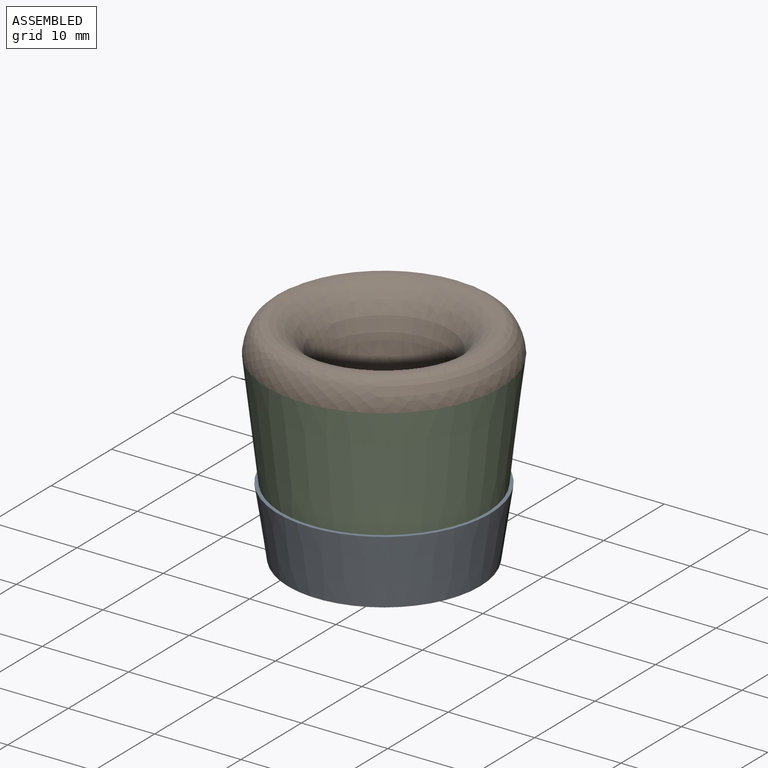
[diagram: assembled view]
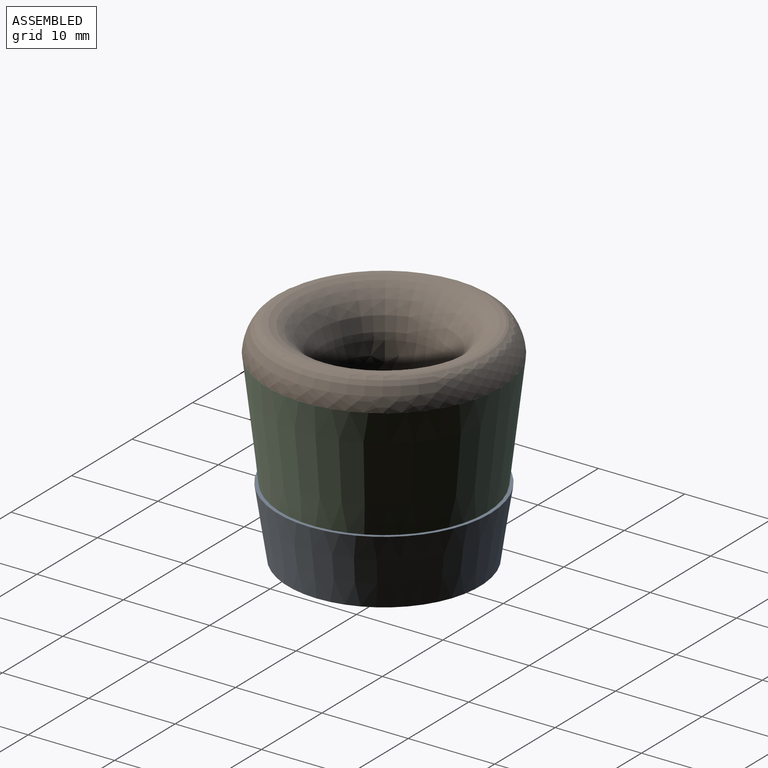
[diagram: assembled view, second angle]
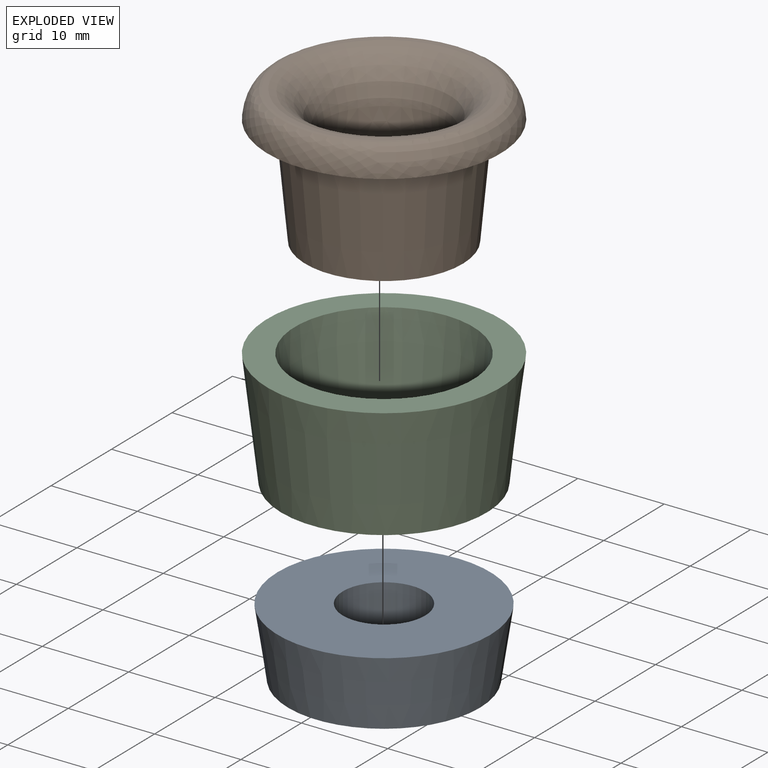
[diagram: exploded view]
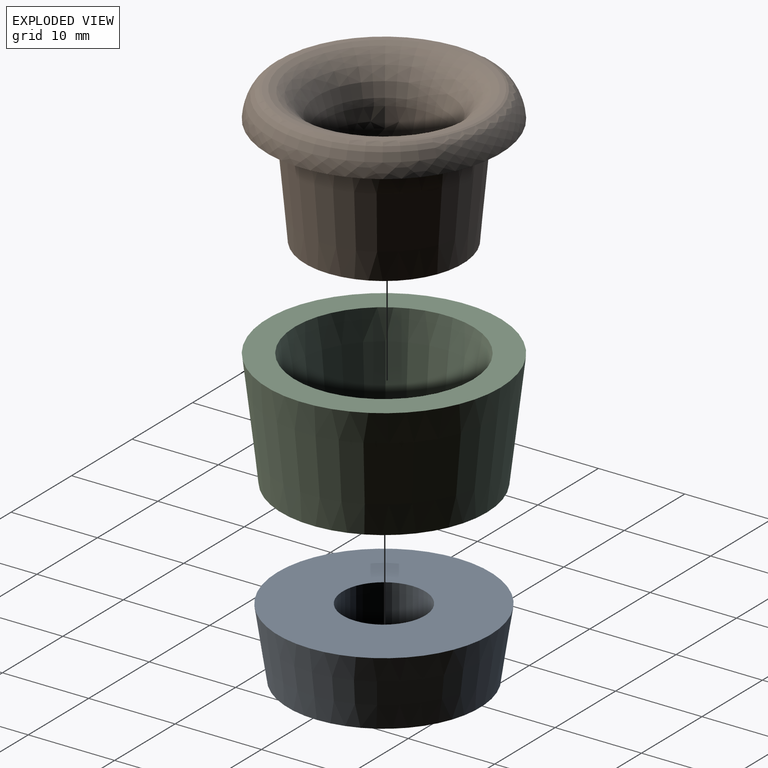
[diagram: exploded view, second angle]
ASSEMBLY  parts=3 mates=2
PART A: 4 faces, bbox 24.6x24.6x7.9 mm
  f0: cylinder r=4.76mm len=9.53mm, axis (0,0,-1), area 237.5mm2, adj f1,f3
  f1: plane 24.61x24.61mm, normal (0,0,-1), area 404.3mm2, adj f0,f2
  f2: cone r=11.11mm half-angle=8.5deg, axis (0,0,-1), area 590.4mm2, adj f1,f3
  f3: plane 22.23x22.23mm, normal (0,0,1), area 316.7mm2, adj f0,f2
PART B: 8 faces, bbox 27x27x15.9 mm
  f0: plane 23.21x23.21mm, normal (0,0,1), area 44mm2, adj f1,f7
  f1: revolved ~21.97x21.97mm, area 695.7mm2, adj f0,f2
  f2: cone r=1.98mm half-angle=45deg, axis (0,0,1), area 52.4mm2, adj f1,f3
  f3: cylinder r=1.98mm len=3.97mm, axis (0,0,-1), area 15.8mm2, adj f2,f4
  f4: plane 18.26x18.26mm, normal (0,0,-1), area 249.4mm2, adj f3,f5
  f5: cone r=10.32mm half-angle=5.4deg, axis (0,0,1), area 779.3mm2, adj f4,f6
  f6: plane 26.99x26.99mm, normal (0,0,-1), area 237.5mm2, adj f5,f7
  f7: revolved ~26.99x26.99mm, area 318.6mm2, adj f0,f6
PART C: 4 faces, bbox 27x13.5x27 mm
  f0: cone r=13.49mm half-angle=6.7deg, axis (0,-1,0), area 1084.2mm2, adj f1,f3
  f1: plane 26.99x26.99mm, normal (0,-1,0), area 237.5mm2, adj f0,f2
  f2: cone r=10.32mm half-angle=6.7deg, axis (0,-1,0), area 813.1mm2, adj f1,f3
  f3: plane 23.81x23.81mm, normal (0,1,0), area 205.8mm2, adj f0,f2
PLACE A rot(axis=(1,0,0),180deg) t=(1.63,11.33,4.66)mm
PLACE B t=(1.63,11.33,5.46)mm
PLACE C rot(axis=(-1,0,0),90deg) t=(1.63,11.33,4.66)mm
MATE planar C.f0 <-> B.f2  axis (0,0,1) through (1.63,11.33,18.16)mm
MATE planar A.f0 <-> C.f0  axis (0,0,1) through (1.63,11.33,4.66)mm
